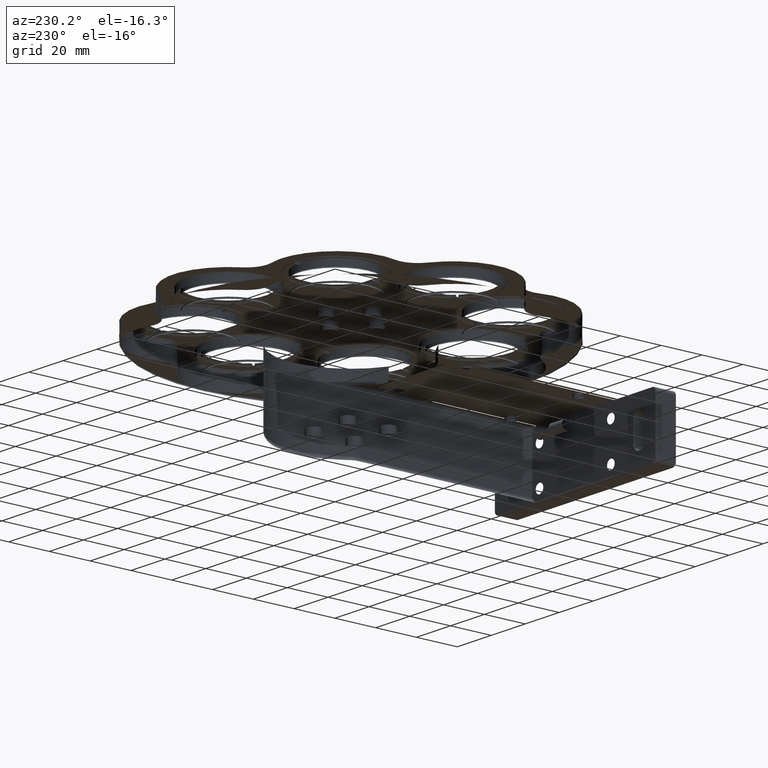
[diagram: clean part render]
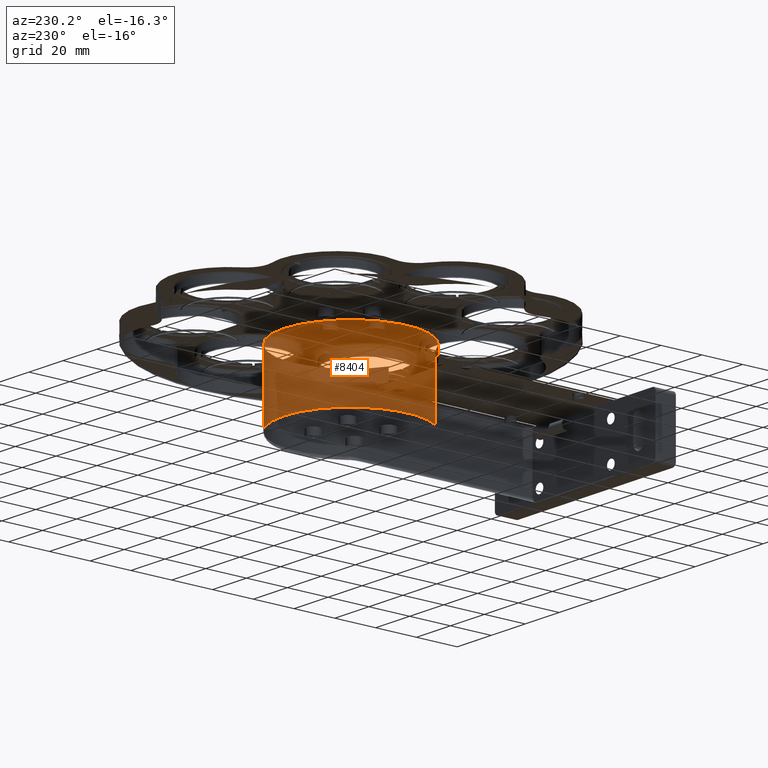
[diagram: same view with one face highlighted and labeled with its STEP entity id]
A machine part, auxiliary view. The second image highlights one B-rep face of the part: STEP entity #8404.
In plain terms, the highlighted cylindrical surface (partial cylindrical patch) has radius 33 mm, axis along (-0, -0, -1).
Its self-contained STEP definition (entity closure, byte-faithful):
#66 = CARTESIAN_POINT ( 'NONE',  ( 6.759337150506988579, 43.05509610130579290, 163.0499999999717033 ) ) ;
#378 = CARTESIAN_POINT ( 'NONE',  ( -6.353400880904612080, 32.22578763127293655, 163.0499999999717033 ) ) ;
#484 = EDGE_CURVE ( 'NONE', #15907, #8719, #9898, .T. ) ;
#988 = ORIENTED_EDGE ( 'NONE', *, *, #13356, .F. ) ;
#1245 = DIRECTION ( 'NONE',  ( -1.000000000000000000, 0.000000000000000000, 0.000000000000000000 ) ) ;
#1257 = ORIENTED_EDGE ( 'NONE', *, *, #15117, .T. ) ;
#1792 = CARTESIAN_POINT ( 'NONE',  ( -46.33081341242014162, 42.08478350422358716, 163.0499999999717033 ) ) ;
#1832 = B_SPLINE_CURVE_WITH_KNOTS ( 'NONE', 3,
 ( #6276, #13545, #9635, #14845 ),
 .UNSPECIFIED., .F., .F.,
 ( 4, 4 ),
 ( 0.000000000000000000, 1.000000000000000000 ),
 .UNSPECIFIED. ) ;
#2157 = CARTESIAN_POINT ( 'NONE',  ( 5.788753934864923956, 41.60650065128197639, 163.1499999999716408 ) ) ;
#2395 = CARTESIAN_POINT ( 'NONE',  ( 6.128557480875940655, 42.08478350422358005, 163.0499999999717033 ) ) ;
#2445 = CARTESIAN_POINT ( 'NONE',  ( -33.84885505063957112, 32.22578763127292945, 163.0499999999717033 ) ) ;
#2459 = CARTESIAN_POINT ( 'NONE',  ( -20.10112796577209693, 62.22578763127295787, 138.2499999999716636 ) ) ;
#3036 = CARTESIAN_POINT ( 'NONE',  ( -46.96159308205116645, 43.05509610130575737, 138.2499999999716636 ) ) ;
#3075 = ORIENTED_EDGE ( 'NONE', *, *, #15942, .F. ) ;
#3084 = CARTESIAN_POINT ( 'NONE',  ( -20.10112796577209693, 62.22578763127295787, 135.2499999999716636 ) ) ;
#3110 = DIRECTION ( 'NONE',  ( 0.000000000000000000, 0.000000000000000000, 1.000000000000000000 ) ) ;
#3266 = AXIS2_PLACEMENT_3D ( 'NONE', #14320, #9351, #13346 ) ;
#3384 = CARTESIAN_POINT ( 'NONE',  ( -34.27716408310753593, 32.42578763127293229, 163.2499999999716636 ) ) ;
#3633 = CARTESIAN_POINT ( 'NONE',  ( -44.33865877334422123, 39.69094710352644739, 163.2499999999716351 ) ) ;
#3688 = VECTOR ( 'NONE', #8996, 1000.000000000000000 ) ;
#3749 = VERTEX_POINT ( 'NONE', #8030 ) ;
#3871 = VECTOR ( 'NONE', #15685, 1000.000000000000000 ) ;
#3897 = EDGE_CURVE ( 'NONE', #3749, #9398, #14588, .T. ) ;
#4101 = CARTESIAN_POINT ( 'NONE',  ( 5.698554745762304918, 41.64967594844635812, 163.2499999999716636 ) ) ;
#4196 = CARTESIAN_POINT ( 'NONE',  ( -33.84885505063957112, 32.22578763127292945, 138.2499999999716636 ) ) ;
#4235 = B_SPLINE_CURVE_WITH_KNOTS ( 'NONE', 3,
 ( #5984, #3633, #7117, #8602, #15929, #3384 ),
 .UNSPECIFIED., .F., .F.,
 ( 4, 2, 4 ),
 ( 0.000000000000000000, 0.5000000000000000000, 1.000000000000000000 ),
 .UNSPECIFIED. ) ;
#4410 = VECTOR ( 'NONE', #11335, 1000.000000000000000 ) ;
#4574 = CYLINDRICAL_SURFACE ( 'NONE', #7101, 33.00000000000000000 ) ;
#4916 = CARTESIAN_POINT ( 'NONE',  ( -3.662656289460879400, 33.50204159762141387, 163.2499999999716351 ) ) ;
#4915 = CARTESIAN_POINT ( 'NONE',  ( 6.759337150506988579, 43.05509610130579290, 163.0499999999717033 ) ) ;
#5170 = ORIENTED_EDGE ( 'NONE', *, *, #3897, .F. ) ;
#5378 = CARTESIAN_POINT ( 'NONE',  ( -46.96159308205115934, 43.05509610130575737, 163.0499999999717033 ) ) ;
#5435 = ORIENTED_EDGE ( 'NONE', *, *, #10427, .F. ) ;
#5520 = VERTEX_POINT ( 'NONE', #5805 ) ;
#5607 = CARTESIAN_POINT ( 'NONE',  ( -6.210156162276596170, 32.29143060787448860, 163.1166666666383378 ) ) ;
#5805 = CARTESIAN_POINT ( 'NONE',  ( -6.353400880904612080, 32.22578763127293655, 169.5499999999717033 ) ) ;
#5984 = CARTESIAN_POINT ( 'NONE',  ( -45.90081067730654496, 41.64967594844641496, 163.2499999999716636 ) ) ;
#5999 = EDGE_CURVE ( 'NONE', #7231, #3749, #10659, .T. ) ;
#6022 = CIRCLE ( 'NONE', #8106, 33.00000000000000000 ) ;
#6048 = VECTOR ( 'NONE', #3110, 1000.000000000000000 ) ;
#6276 = CARTESIAN_POINT ( 'NONE',  ( -34.27716408310753593, 32.42578763127293229, 163.2499999999716636 ) ) ;
#6357 = LINE ( 'NONE', #9059, #4410 ) ;
#6415 = CARTESIAN_POINT ( 'NONE',  ( -34.27716408310753593, 32.42578763127293229, 163.2499999999716636 ) ) ;
#6492 = VERTEX_POINT ( 'NONE', #2445 ) ;
#6860 = VERTEX_POINT ( 'NONE', #66 ) ;
#7079 = EDGE_CURVE ( 'NONE', #8719, #8963, #4235, .T. ) ;
#7101 = AXIS2_PLACEMENT_3D ( 'NONE', #2459, #12397, #1245 ) ;
#7117 = CARTESIAN_POINT ( 'NONE',  ( -42.57672227079257965, 37.93325184987774179, 163.2499999999716636 ) ) ;
#7231 = VERTEX_POINT ( 'NONE', #378 ) ;
#7342 = CARTESIAN_POINT ( 'NONE',  ( 6.423490775022775878, 42.58453457570713852, 163.0499999999717033 ) ) ;
#7990 = ORIENTED_EDGE ( 'NONE', *, *, #484, .F. ) ;
#8030 = CARTESIAN_POINT ( 'NONE',  ( -5.925091848436630393, 32.42578763127294650, 163.2499999999716636 ) ) ;
#8102 = CARTESIAN_POINT ( 'NONE',  ( -6.353400880904612080, 32.22578763127293655, 138.2499999999716636 ) ) ;
#8106 = AXIS2_PLACEMENT_3D ( 'NONE', #3084, #14173, #10811 ) ;
#8178 = EDGE_CURVE ( 'NONE', #9398, #6860, #10798, .T. ) ;
#8372 = VERTEX_POINT ( 'NONE', #10845 ) ;
#8404 = ADVANCED_FACE ( 'NONE', ( #15811 ), #4574, .F. ) ;
#8602 = CARTESIAN_POINT ( 'NONE',  ( -38.65160112489630251, 34.81859625258105950, 163.2499999999716351 ) ) ;
#8719 = VERTEX_POINT ( 'NONE', #12727 ) ;
#8963 = VERTEX_POINT ( 'NONE', #6415 ) ;
#8996 = DIRECTION ( 'NONE',  ( 0.000000000000000000, 0.000000000000000000, 1.000000000000000000 ) ) ;
#9012 = ORIENTED_EDGE ( 'NONE', *, *, #7079, .F. ) ;
#9059 = CARTESIAN_POINT ( 'NONE',  ( 6.759337150506989467, 43.05509610130580000, 138.2499999999716636 ) ) ;
#9134 = CARTESIAN_POINT ( 'NONE',  ( -46.62574670656696441, 42.58453457570713141, 163.0499999999717033 ) ) ;
#9177 = ORIENTED_EDGE ( 'NONE', *, *, #12782, .F. ) ;
#9215 = CARTESIAN_POINT ( 'NONE',  ( -46.08120905551174218, 41.56332535411762308, 163.0499999999717033 ) ) ;
#9351 = DIRECTION ( 'NONE',  ( -0.000000000000000000, -0.000000000000000000, -1.000000000000000000 ) ) ;
#9398 = VERTEX_POINT ( 'NONE', #2157 ) ;
#9420 = LINE ( 'NONE', #8102, #3871 ) ;
#9635 = CARTESIAN_POINT ( 'NONE',  ( -33.99209976926757548, 32.29143060787447439, 163.1166666666383662 ) ) ;
#9765 = EDGE_CURVE ( 'NONE', #8372, #5520, #15243, .T. ) ;
#9828 = VERTEX_POINT ( 'NONE', #10969 ) ;
#9895 = CARTESIAN_POINT ( 'NONE',  ( -1.550603567730814092, 34.81853168306771806, 163.2499999999716636 ) ) ;
#9898 = B_SPLINE_CURVE_WITH_KNOTS ( 'NONE', 3,
 ( #5378, #9134, #1792, #9215 ),
 .UNSPECIFIED., .F., .F.,
 ( 4, 4 ),
 ( 0.000000000000000000, 1.000000000000000000 ),
 .UNSPECIFIED. ) ;
#10013 = ORIENTED_EDGE ( 'NONE', *, *, #8178, .F. ) ;
#10053 = CARTESIAN_POINT ( 'NONE',  ( 4.136631426818625279, 39.69123371846339410, 163.2499999999716636 ) ) ;
#10248 = ORIENTED_EDGE ( 'NONE', *, *, #9765, .F. ) ;
#10368 = LINE ( 'NONE', #3036, #6048 ) ;
#10427 = EDGE_CURVE ( 'NONE', #8963, #6492, #1832, .T. ) ;
#10659 = B_SPLINE_CURVE_WITH_KNOTS ( 'NONE', 3,
 ( #11719, #5607, #15924, #13028 ),
 .UNSPECIFIED., .F., .F.,
 ( 4, 4 ),
 ( 0.000000000000000000, 1.000000000000000000 ),
 .UNSPECIFIED. ) ;
#10798 = B_SPLINE_CURVE_WITH_KNOTS ( 'NONE', 3,
 ( #13562, #2395, #7342, #4915 ),
 .UNSPECIFIED., .F., .F.,
 ( 4, 4 ),
 ( 0.000000000000000000, 1.000000000000000000 ),
 .UNSPECIFIED. ) ;
#10811 = DIRECTION ( 'NONE',  ( 1.000000000000000000, 0.000000000000000000, 0.000000000000000000 ) ) ;
#10845 = CARTESIAN_POINT ( 'NONE',  ( -33.84885505063957112, 32.22578763127292945, 169.5499999999717033 ) ) ;
#10969 = CARTESIAN_POINT ( 'NONE',  ( 6.759337150506983249, 43.05509610130579290, 135.2499999999716636 ) ) ;
#11335 = DIRECTION ( 'NONE',  ( -0.000000000000000000, -0.000000000000000000, -1.000000000000000000 ) ) ;
#11719 = CARTESIAN_POINT ( 'NONE',  ( -6.353400880904612080, 32.22578763127293655, 163.0499999999717033 ) ) ;
#12214 = EDGE_LOOP ( 'NONE', ( #5435, #9012, #7990, #3075, #1257, #988, #10013, #5170, #15815, #9177, #10248, #15546 ) ) ;
#12397 = DIRECTION ( 'NONE',  ( -0.000000000000000000, -0.000000000000000000, -1.000000000000000000 ) ) ;
#12727 = CARTESIAN_POINT ( 'NONE',  ( -45.99100986640914357, 41.60650065128201902, 163.1499999999716692 ) ) ;
#12782 = EDGE_CURVE ( 'NONE', #5520, #7231, #9420, .T. ) ;
#13028 = CARTESIAN_POINT ( 'NONE',  ( -5.925091848436630393, 32.42578763127294650, 163.2499999999716636 ) ) ;
#13346 = DIRECTION ( 'NONE',  ( -1.000000000000000000, 0.000000000000000000, 0.000000000000000000 ) ) ;
#13356 = EDGE_CURVE ( 'NONE', #6860, #9828, #6357, .T. ) ;
#13502 = VERTEX_POINT ( 'NONE', #15571 ) ;
#13545 = CARTESIAN_POINT ( 'NONE',  ( -34.13487432927036735, 32.35809955444332786, 163.1833333333050007 ) ) ;
#13562 = CARTESIAN_POINT ( 'NONE',  ( 5.878953123967538552, 41.56332535411760176, 163.0499999999717033 ) ) ;
#14173 = DIRECTION ( 'NONE',  ( -0.000000000000000000, -0.000000000000000000, -1.000000000000000000 ) ) ;
#14217 = EDGE_CURVE ( 'NONE', #6492, #8372, #15192, .T. ) ;
#14320 = CARTESIAN_POINT ( 'NONE',  ( -20.10112796577209693, 62.22578763127295787, 169.5499999999717033 ) ) ;
#14588 = B_SPLINE_CURVE_WITH_KNOTS ( 'NONE', 3,
 ( #16076, #4916, #9895, #15018, #10053, #4101 ),
 .UNSPECIFIED., .F., .F.,
 ( 4, 2, 4 ),
 ( 0.000000000000000000, 0.5000000000000000000, 1.000000000000000000 ),
 .UNSPECIFIED. ) ;
#14845 = CARTESIAN_POINT ( 'NONE',  ( -33.84885505063957112, 32.22578763127292945, 163.0499999999717033 ) ) ;
#15018 = CARTESIAN_POINT ( 'NONE',  ( 2.374415100331265016, 37.93331641939105481, 163.2499999999716351 ) ) ;
#15117 = EDGE_CURVE ( 'NONE', #13502, #9828, #6022, .T. ) ;
#15192 = LINE ( 'NONE', #4196, #3688 ) ;
#15243 = CIRCLE ( 'NONE', #3266, 33.00000000000000000 ) ;
#15259 = CARTESIAN_POINT ( 'NONE',  ( -46.96159308205115934, 43.05509610130575737, 163.0499999999717033 ) ) ;
#15546 = ORIENTED_EDGE ( 'NONE', *, *, #14217, .F. ) ;
#15571 = CARTESIAN_POINT ( 'NONE',  ( -46.96159308205116645, 43.05509610130575737, 135.2499999999716636 ) ) ;
#15685 = DIRECTION ( 'NONE',  ( -0.000000000000000000, -0.000000000000000000, -1.000000000000000000 ) ) ;
#15811 = FACE_OUTER_BOUND ( 'NONE', #12214, .T. ) ;
#15815 = ORIENTED_EDGE ( 'NONE', *, *, #5999, .F. ) ;
#15907 = VERTEX_POINT ( 'NONE', #15259 ) ;
#15924 = CARTESIAN_POINT ( 'NONE',  ( -6.067381602273793639, 32.35809955444334207, 163.1833333333050007 ) ) ;
#15929 = CARTESIAN_POINT ( 'NONE',  ( -36.53926858665067101, 33.50188411259557597, 163.2499999999716636 ) ) ;
#15942 = EDGE_CURVE ( 'NONE', #13502, #15907, #10368, .T. ) ;
#16076 = CARTESIAN_POINT ( 'NONE',  ( -5.925091848436630393, 32.42578763127294650, 163.2499999999716636 ) ) ;